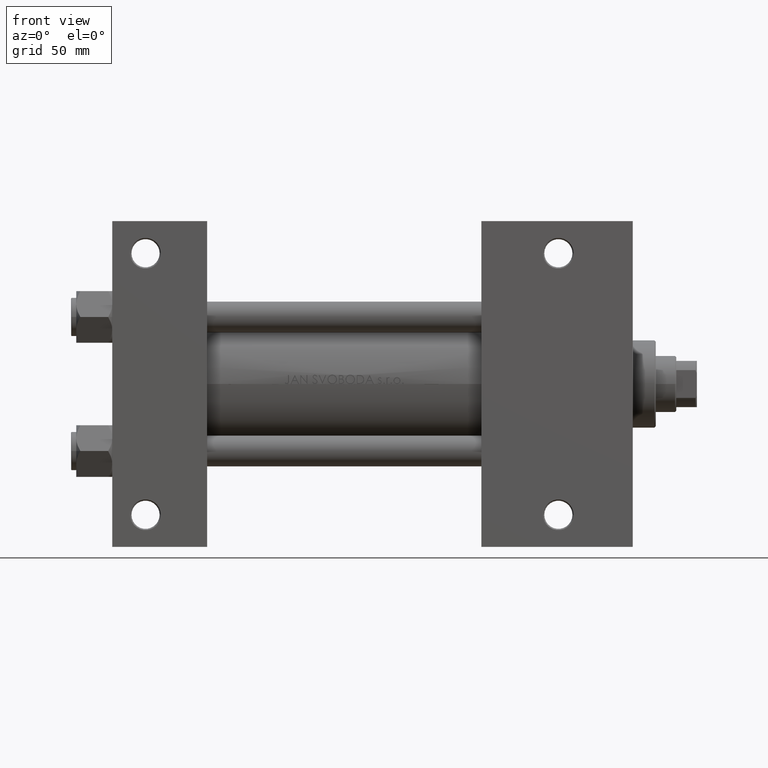
[diagram: clean part render]
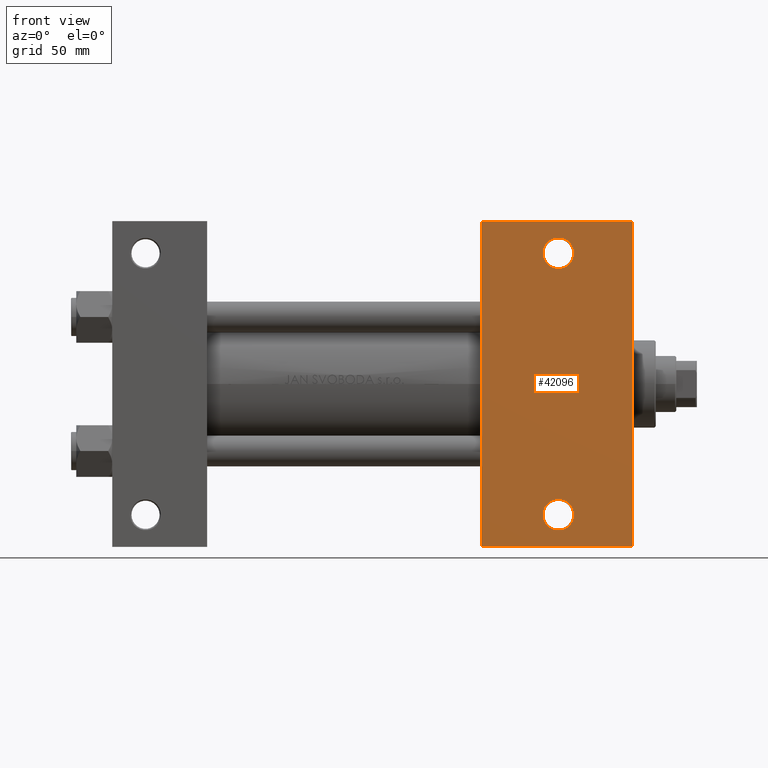
[diagram: same view with one face highlighted and labeled with its STEP entity id]
A machine part, front view. The second image highlights one B-rep face of the part: STEP entity #42096.
In plain terms, the highlighted planar face has unit normal (0, -1, 0).
Its self-contained STEP definition (entity closure, byte-faithful):
#294 = DIRECTION ( 'NONE',  ( -1.000000000000000000, 4.704334850106593822E-16, -0.000000000000000000 ) ) ;
#1031 = FACE_BOUND ( 'NONE', #12794, .T. ) ;
#1386 = EDGE_CURVE ( 'NONE', #15476, #25492, #43235, .T. ) ;
#1723 = DIRECTION ( 'NONE',  ( 1.000000000000000000, 4.704334850106593822E-16, 0.000000000000000000 ) ) ;
#1975 = DIRECTION ( 'NONE',  ( -1.000000000000000000, 0.000000000000000000, 0.000000000000000000 ) ) ;
#3608 = CARTESIAN_POINT ( 'NONE',  ( 174.0000000000000000, -51.00000000000000000, -37.50000000000000000 ) ) ;
#5113 = ORIENTED_EDGE ( 'NONE', *, *, #1386, .T. ) ;
#7101 = AXIS2_PLACEMENT_3D ( 'NONE', #38152, #46607, #19221 ) ;
#8010 = CARTESIAN_POINT ( 'NONE',  ( 144.0000000000000284, 63.49999999999997158, -37.50000000000000000 ) ) ;
#8873 = EDGE_CURVE ( 'NONE', #40214, #35925, #34395, .T. ) ;
#8929 = EDGE_CURVE ( 'NONE', #33828, #35925, #26671, .T. ) ;
#9555 = EDGE_CURVE ( 'NONE', #25515, #27093, #21221, .T. ) ;
#10210 = CARTESIAN_POINT ( 'NONE',  ( 203.0000000000000000, -63.50000000000002842, -37.50000000000000000 ) ) ;
#11747 = DIRECTION ( 'NONE',  ( 0.000000000000000000, -1.000000000000000000, 0.000000000000000000 ) ) ;
#11848 = ORIENTED_EDGE ( 'NONE', *, *, #39555, .T. ) ;
#11996 = FACE_OUTER_BOUND ( 'NONE', #19442, .T. ) ;
#12500 = CARTESIAN_POINT ( 'NONE',  ( 179.9995000000000118, -51.00000000000000000, -37.50000000000000000 ) ) ;
#12794 = EDGE_LOOP ( 'NONE', ( #17112, #29841 ) ) ;
#13022 = CIRCLE ( 'NONE', #17822, 5.999500000000018929 ) ;
#13162 = VERTEX_POINT ( 'NONE', #36863 ) ;
#13500 = EDGE_CURVE ( 'NONE', #13162, #40214, #20138, .T. ) ;
#13947 = ORIENTED_EDGE ( 'NONE', *, *, #36968, .T. ) ;
#15118 = AXIS2_PLACEMENT_3D ( 'NONE', #16897, #46553, #28581 ) ;
#15476 = VERTEX_POINT ( 'NONE', #47888 ) ;
#16536 = DIRECTION ( 'NONE',  ( -0.000000000000000000, -0.000000000000000000, 1.000000000000000000 ) ) ;
#16897 = CARTESIAN_POINT ( 'NONE',  ( 174.0000000000000000, 51.00000000000000711, -37.50000000000000000 ) ) ;
#17112 = ORIENTED_EDGE ( 'NONE', *, *, #9555, .T. ) ;
#17822 = AXIS2_PLACEMENT_3D ( 'NONE', #3608, #42224, #33748 ) ;
#19221 = DIRECTION ( 'NONE',  ( -1.000000000000000000, 0.000000000000000000, -0.000000000000000000 ) ) ;
#19442 = EDGE_LOOP ( 'NONE', ( #46098, #13947, #36259, #46414 ) ) ;
#19619 = VECTOR ( 'NONE', #11747, 1000.000000000000000 ) ;
#20138 = LINE ( 'NONE', #42082, #45114 ) ;
#20895 = LINE ( 'NONE', #35573, #23740 ) ;
#21221 = CIRCLE ( 'NONE', #41914, 5.999500000000018929 ) ;
#21439 = CIRCLE ( 'NONE', #15118, 5.999500000000018929 ) ;
#22706 = CARTESIAN_POINT ( 'NONE',  ( 144.0000000000000000, -63.50000000000000000, -37.50000000000000000 ) ) ;
#22954 = CARTESIAN_POINT ( 'NONE',  ( 144.0000000000000000, 37.50000000000000000, -37.50000000000000000 ) ) ;
#23740 = VECTOR ( 'NONE', #1723, 1000.000000000000000 ) ;
#25492 = VERTEX_POINT ( 'NONE', #43304 ) ;
#25515 = VERTEX_POINT ( 'NONE', #46556 ) ;
#26609 = EDGE_CURVE ( 'NONE', #27093, #25515, #13022, .T. ) ;
#26671 = LINE ( 'NONE', #22954, #19619 ) ;
#27093 = VERTEX_POINT ( 'NONE', #12500 ) ;
#27399 = FACE_BOUND ( 'NONE', #36358, .T. ) ;
#28581 = DIRECTION ( 'NONE',  ( -1.000000000000000000, 0.000000000000000000, 0.000000000000000000 ) ) ;
#29841 = ORIENTED_EDGE ( 'NONE', *, *, #26609, .T. ) ;
#30841 = DIRECTION ( 'NONE',  ( 0.000000000000000000, -1.000000000000000000, 0.000000000000000000 ) ) ;
#32006 = CARTESIAN_POINT ( 'NONE',  ( 144.0000000000000000, -63.50000000000000000, -37.50000000000000000 ) ) ;
#33748 = DIRECTION ( 'NONE',  ( -1.000000000000000000, 0.000000000000000000, 0.000000000000000000 ) ) ;
#33828 = VERTEX_POINT ( 'NONE', #8010 ) ;
#34395 = LINE ( 'NONE', #22706, #45091 ) ;
#35573 = CARTESIAN_POINT ( 'NONE',  ( 144.0000000000000284, 63.49999999999997158, -37.50000000000000000 ) ) ;
#35925 = VERTEX_POINT ( 'NONE', #32006 ) ;
#36080 = AXIS2_PLACEMENT_3D ( 'NONE', #46813, #47065, #1975 ) ;
#36259 = ORIENTED_EDGE ( 'NONE', *, *, #13500, .T. ) ;
#36358 = EDGE_LOOP ( 'NONE', ( #5113, #11848 ) ) ;
#36863 = CARTESIAN_POINT ( 'NONE',  ( 203.0000000000000284, 63.50000000000000000, -37.50000000000000000 ) ) ;
#36968 = EDGE_CURVE ( 'NONE', #33828, #13162, #20895, .T. ) ;
#38152 = CARTESIAN_POINT ( 'NONE',  ( 203.0000000000000000, 37.50000000000000000, -37.50000000000000000 ) ) ;
#39555 = EDGE_CURVE ( 'NONE', #25492, #15476, #21439, .T. ) ;
#40214 = VERTEX_POINT ( 'NONE', #10210 ) ;
#41914 = AXIS2_PLACEMENT_3D ( 'NONE', #46202, #16536, #43436 ) ;
#42082 = CARTESIAN_POINT ( 'NONE',  ( 203.0000000000000000, 37.50000000000000000, -37.50000000000000000 ) ) ;
#42096 = ADVANCED_FACE ( 'NONE', ( #27399, #1031, #11996 ), #46369, .T. ) ;
#42224 = DIRECTION ( 'NONE',  ( -0.000000000000000000, -0.000000000000000000, 1.000000000000000000 ) ) ;
#43235 = CIRCLE ( 'NONE', #36080, 5.999500000000018929 ) ;
#43304 = CARTESIAN_POINT ( 'NONE',  ( 179.9995000000000118, 51.00000000000000711, -37.50000000000000000 ) ) ;
#43436 = DIRECTION ( 'NONE',  ( -1.000000000000000000, 0.000000000000000000, 0.000000000000000000 ) ) ;
#45091 = VECTOR ( 'NONE', #294, 1000.000000000000000 ) ;
#45114 = VECTOR ( 'NONE', #30841, 1000.000000000000000 ) ;
#46098 = ORIENTED_EDGE ( 'NONE', *, *, #8929, .F. ) ;
#46202 = CARTESIAN_POINT ( 'NONE',  ( 174.0000000000000000, -51.00000000000000000, -37.50000000000000000 ) ) ;
#46369 = PLANE ( 'NONE',  #7101 ) ;
#46414 = ORIENTED_EDGE ( 'NONE', *, *, #8873, .T. ) ;
#46553 = DIRECTION ( 'NONE',  ( -0.000000000000000000, -0.000000000000000000, 1.000000000000000000 ) ) ;
#46556 = CARTESIAN_POINT ( 'NONE',  ( 168.0004999999999598, -51.00000000000000000, -37.50000000000000000 ) ) ;
#46607 = DIRECTION ( 'NONE',  ( 0.000000000000000000, 0.000000000000000000, -1.000000000000000000 ) ) ;
#46813 = CARTESIAN_POINT ( 'NONE',  ( 174.0000000000000000, 51.00000000000000711, -37.50000000000000000 ) ) ;
#47065 = DIRECTION ( 'NONE',  ( -0.000000000000000000, -0.000000000000000000, 1.000000000000000000 ) ) ;
#47888 = CARTESIAN_POINT ( 'NONE',  ( 168.0004999999999598, 51.00000000000000711, -37.50000000000000000 ) ) ;